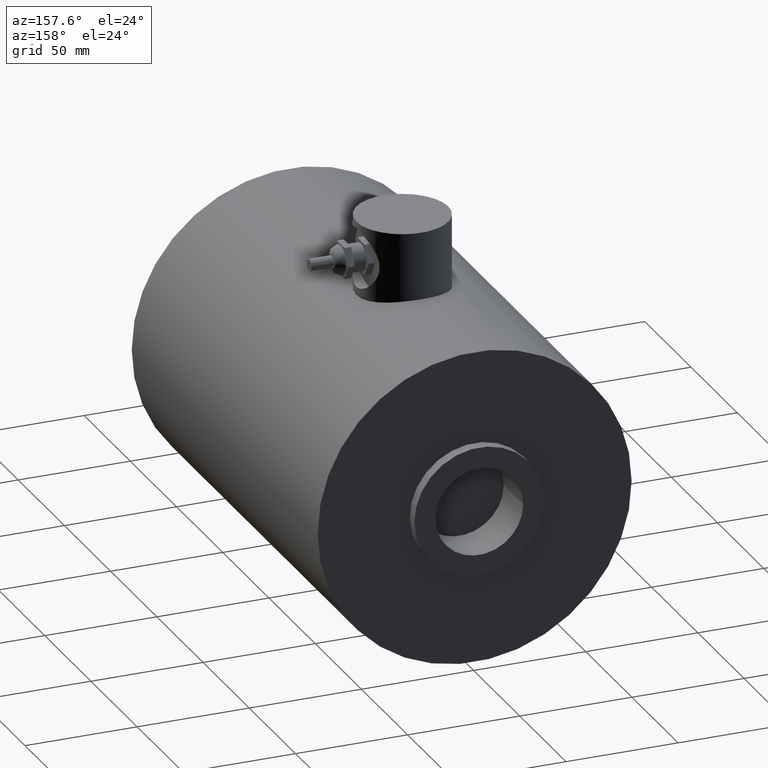
[diagram: clean part render]
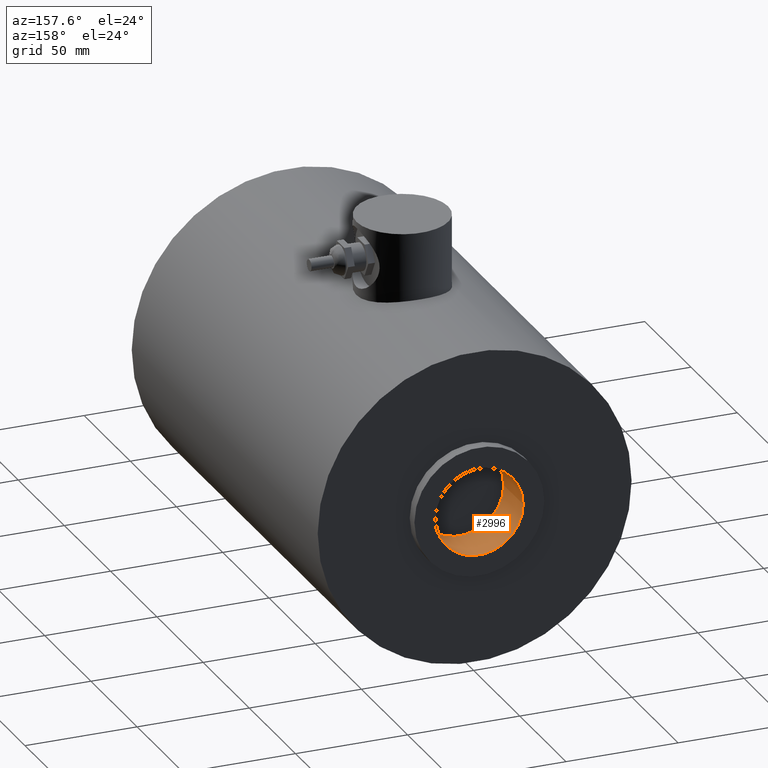
[diagram: same view with one face highlighted and labeled with its STEP entity id]
A machine part, auxiliary view. The second image highlights one B-rep face of the part: STEP entity #2996.
In plain terms, the highlighted cylindrical surface (bore or boss wall) has radius 19.558 mm, axis along (0, -1, 0).
Its self-contained STEP definition (entity closure, byte-faithful):
#483=FACE_OUTER_BOUND('',#667,.T.);
#667=EDGE_LOOP('',(#2671,#2672,#2673,#2674,#2675,#2676));
#835=LINE('',#16667,#998);
#998=VECTOR('',#3806,0.77);
#1043=CIRCLE('',#3218,0.77);
#1044=CIRCLE('',#3219,0.77);
#1045=CIRCLE('',#3221,0.77);
#1046=CIRCLE('',#3222,0.77);
#1338=VERTEX_POINT('',#16661);
#1339=VERTEX_POINT('',#16662);
#1340=VERTEX_POINT('',#16666);
#1341=VERTEX_POINT('',#16668);
#1785=EDGE_CURVE('',#1338,#1339,#1043,.T.);
#1786=EDGE_CURVE('',#1339,#1338,#1044,.T.);
#1787=EDGE_CURVE('',#1339,#1340,#835,.T.);
#1788=EDGE_CURVE('',#1341,#1340,#1045,.T.);
#1789=EDGE_CURVE('',#1340,#1341,#1046,.T.);
#2671=ORIENTED_EDGE('',*,*,#1785,.T.);
#2672=ORIENTED_EDGE('',*,*,#1787,.T.);
#2673=ORIENTED_EDGE('',*,*,#1788,.F.);
#2674=ORIENTED_EDGE('',*,*,#1789,.F.);
#2675=ORIENTED_EDGE('',*,*,#1787,.F.);
#2676=ORIENTED_EDGE('',*,*,#1786,.T.);
#2825=CYLINDRICAL_SURFACE('',#3220,0.77);
#2996=ADVANCED_FACE('',(#483),#2825,.F.);
#3218=AXIS2_PLACEMENT_3D('',#16663,#3800,#3801);
#3219=AXIS2_PLACEMENT_3D('',#16664,#3802,#3803);
#3220=AXIS2_PLACEMENT_3D('',#16665,#3804,#3805);
#3221=AXIS2_PLACEMENT_3D('',#16669,#3807,#3808);
#3222=AXIS2_PLACEMENT_3D('',#16670,#3809,#3810);
#3800=DIRECTION('center_axis',(0.,-1.,0.));
#3801=DIRECTION('ref_axis',(1.,0.,0.));
#3802=DIRECTION('center_axis',(0.,-1.,0.));
#3803=DIRECTION('ref_axis',(1.,0.,0.));
#3804=DIRECTION('center_axis',(0.,-1.,0.));
#3805=DIRECTION('ref_axis',(1.,0.,0.));
#3806=DIRECTION('',(0.,1.,0.));
#3807=DIRECTION('center_axis',(0.,-1.,0.));
#3808=DIRECTION('ref_axis',(1.,0.,0.));
#3809=DIRECTION('center_axis',(0.,-1.,0.));
#3810=DIRECTION('ref_axis',(1.,0.,0.));
#16661=CARTESIAN_POINT('',(0.77,7.29,0.));
#16662=CARTESIAN_POINT('',(-0.77,7.29,-9.42978035343462E-17));
#16663=CARTESIAN_POINT('Origin',(-1.94109474709895E-32,7.29,0.));
#16664=CARTESIAN_POINT('Origin',(-1.94109474709895E-32,7.29,0.));
#16665=CARTESIAN_POINT('Origin',(-1.94109474709895E-32,7.705,0.));
#16666=CARTESIAN_POINT('',(-0.77,8.12,-9.42978035343462E-17));
#16667=CARTESIAN_POINT('',(-0.77,7.705,-9.42978035343462E-17));
#16668=CARTESIAN_POINT('',(0.77,8.12,0.));
#16669=CARTESIAN_POINT('Origin',(-1.94109474709895E-32,8.12,0.));
#16670=CARTESIAN_POINT('Origin',(-1.94109474709895E-32,8.12,0.));